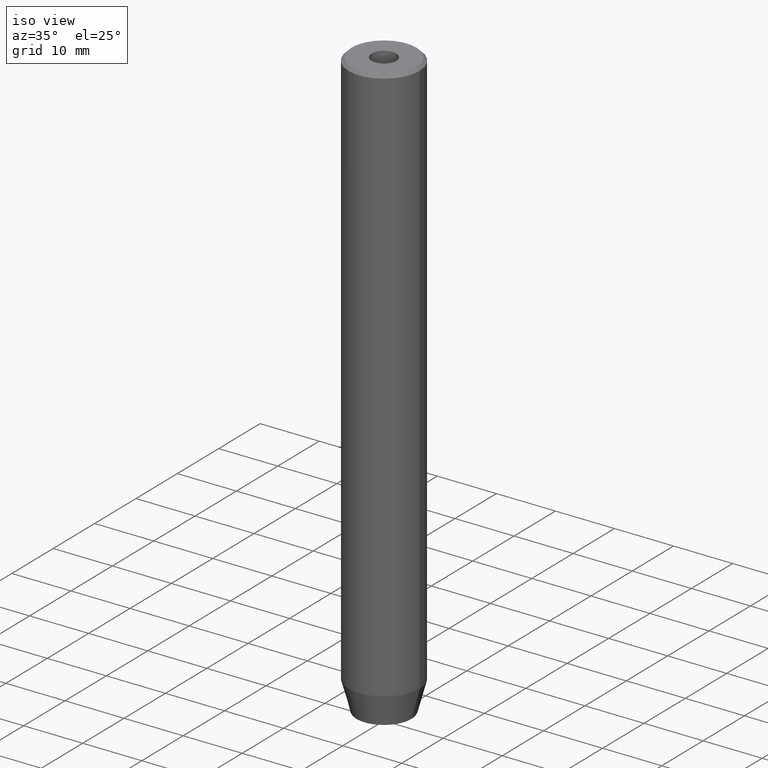
[diagram: clean part render]
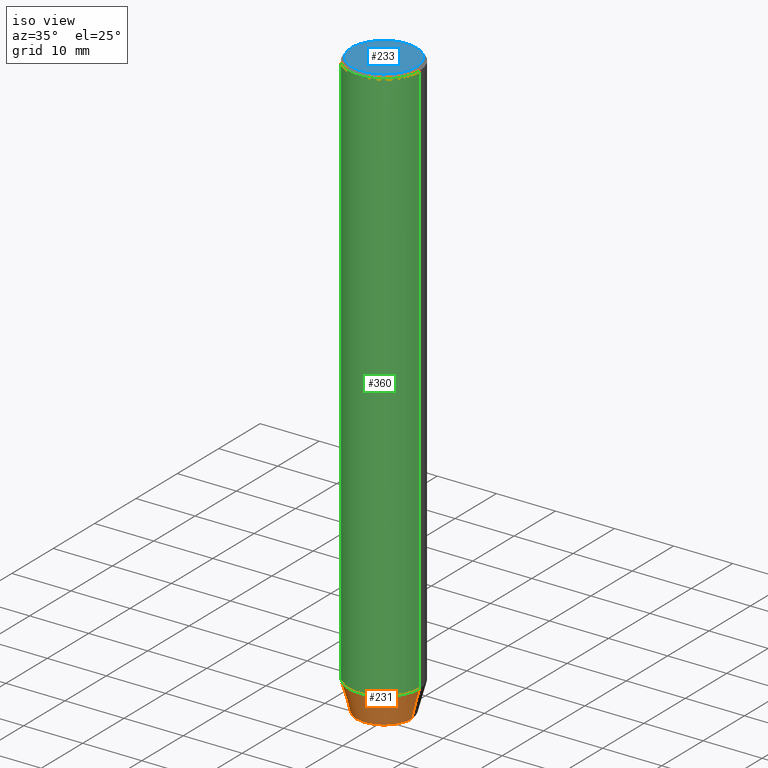
[diagram: same view with three faces highlighted in distinct colors, each labeled with its STEP entity id]
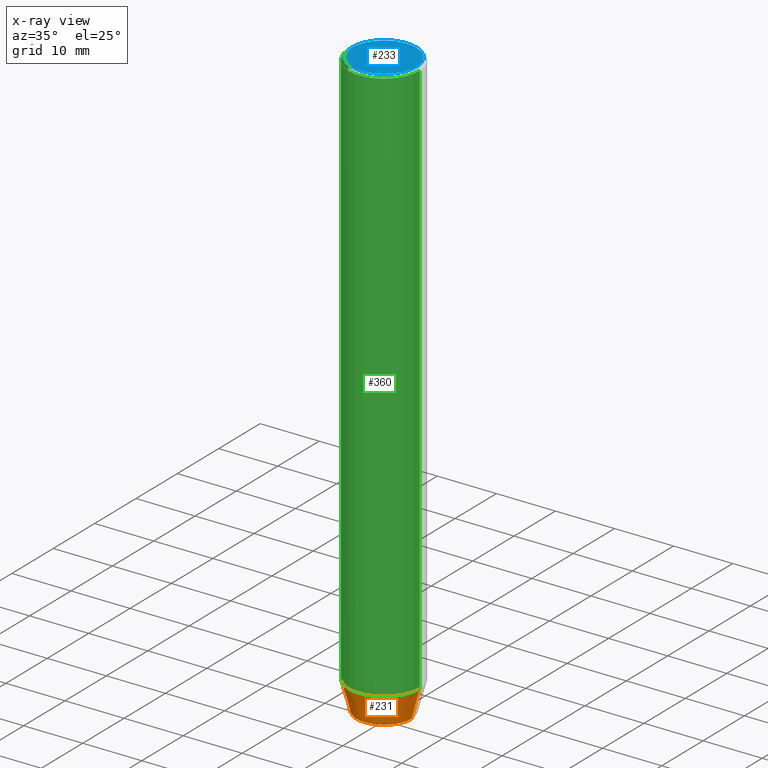
[diagram: x-ray of the same camera — body ghosted, the three highlighted faces saturated]
A machine part, iso view with three faces highlighted in distinct colors.
The next image is the same camera in x-ray (body ghosted, the three faces saturated) — at least one of them is partly hidden behind the body in this view.
Their STEP definitions:

[orange] entity #231 — the highlighted conical surface has half-angle 15 deg.
#43 = FACE_OUTER_BOUND ( 'NONE', #172, .T. ) ;
#47 = AXIS2_PLACEMENT_3D ( 'NONE', #346, #260, #438 ) ;
#49 = LINE ( 'NONE', #560, #364 ) ;
#50 = EDGE_CURVE ( 'NONE', #415, #471, #49, .T. ) ;
#91 = DIRECTION ( 'NONE',  ( -0.2588190451025214611, 3.169619151431774186E-17, 0.9659258262890679791 ) ) ;
#99 = AXIS2_PLACEMENT_3D ( 'NONE', #307, #210, #486 ) ;
#113 = LINE ( 'NONE', #437, #391 ) ;
#128 = EDGE_CURVE ( 'NONE', #383, #555, #113, .T. ) ;
#145 = EDGE_CURVE ( 'NONE', #471, #555, #413, .T. ) ;
#147 = CARTESIAN_POINT ( 'NONE',  ( -4.660254037844381081, 6.527522992771884330E-16, -100.0000000000000000 ) ) ;
#164 = CARTESIAN_POINT ( 'NONE',  ( 6.000000000000000000, 0.000000000000000000, -95.00000000000000000 ) ) ;
#172 = EDGE_LOOP ( 'NONE', ( #558, #533, #273, #319 ) ) ;
#210 = DIRECTION ( 'NONE',  ( -0.000000000000000000, -0.000000000000000000, 1.000000000000000000 ) ) ;
#231 = ADVANCED_FACE ( 'NONE', ( #43 ), #300, .T. ) ;
#240 = EDGE_CURVE ( 'NONE', #415, #383, #271, .T. ) ;
#249 = DIRECTION ( 'NONE',  ( 0.2588190451025214611, 0.000000000000000000, 0.9659258262890679791 ) ) ;
#260 = DIRECTION ( 'NONE',  ( -0.000000000000000000, -0.000000000000000000, 1.000000000000000000 ) ) ;
#271 = CIRCLE ( 'NONE', #347, 4.660254037844381081 ) ;
#273 = ORIENTED_EDGE ( 'NONE', *, *, #128, .T. ) ;
#281 = CARTESIAN_POINT ( 'NONE',  ( -6.000000000000000000, 7.347880794884119736E-16, -95.00000000000000000 ) ) ;
#300 = CONICAL_SURFACE ( 'NONE', #47, 6.000000000000000000, 0.2617993877991502405 ) ;
#307 = CARTESIAN_POINT ( 'NONE',  ( 0.000000000000000000, 0.000000000000000000, -95.00000000000000000 ) ) ;
#317 = DIRECTION ( 'NONE',  ( -0.000000000000000000, -0.000000000000000000, 1.000000000000000000 ) ) ;
#319 = ORIENTED_EDGE ( 'NONE', *, *, #145, .F. ) ;
#346 = CARTESIAN_POINT ( 'NONE',  ( 0.000000000000000000, 0.000000000000000000, -95.00000000000000000 ) ) ;
#347 = AXIS2_PLACEMENT_3D ( 'NONE', #491, #317, #500 ) ;
#364 = VECTOR ( 'NONE', #91, 1000.000000000000114 ) ;
#383 = VERTEX_POINT ( 'NONE', #510 ) ;
#391 = VECTOR ( 'NONE', #249, 1000.000000000000114 ) ;
#413 = CIRCLE ( 'NONE', #99, 6.000000000000000000 ) ;
#415 = VERTEX_POINT ( 'NONE', #147 ) ;
#437 = CARTESIAN_POINT ( 'NONE',  ( 6.000000000000000000, 0.000000000000000000, -95.00000000000000000 ) ) ;
#438 = DIRECTION ( 'NONE',  ( 1.000000000000000000, 0.000000000000000000, 0.000000000000000000 ) ) ;
#471 = VERTEX_POINT ( 'NONE', #281 ) ;
#486 = DIRECTION ( 'NONE',  ( 1.000000000000000000, 0.000000000000000000, 0.000000000000000000 ) ) ;
#491 = CARTESIAN_POINT ( 'NONE',  ( 0.000000000000000000, 0.000000000000000000, -100.0000000000000000 ) ) ;
#500 = DIRECTION ( 'NONE',  ( 1.000000000000000000, 0.000000000000000000, 0.000000000000000000 ) ) ;
#510 = CARTESIAN_POINT ( 'NONE',  ( 4.660254037844381081, 0.000000000000000000, -100.0000000000000000 ) ) ;
#533 = ORIENTED_EDGE ( 'NONE', *, *, #240, .T. ) ;
#555 = VERTEX_POINT ( 'NONE', #164 ) ;
#558 = ORIENTED_EDGE ( 'NONE', *, *, #50, .F. ) ;
#560 = CARTESIAN_POINT ( 'NONE',  ( -6.000000000000000000, 7.347880794884119736E-16, -95.00000000000000000 ) ) ;

[blue] entity #233 — the highlighted planar face has unit normal (0, -0, 1).
#1 = EDGE_CURVE ( 'NONE', #283, #66, #377, .T. ) ;
#3 = CARTESIAN_POINT ( 'NONE',  ( -2.099999999999998757, 2.571758278209439985E-16, -1.990051048614449116E-16 ) ) ;
#8 = CARTESIAN_POINT ( 'NONE',  ( 0.000000000000000000, 0.000000000000000000, 0.000000000000000000 ) ) ;
#19 = CARTESIAN_POINT ( 'NONE',  ( 5.500000000000004441, 7.041719095097283838E-16, 0.000000000000000000 ) ) ;
#20 = EDGE_LOOP ( 'NONE', ( #285, #276 ) ) ;
#52 = FACE_BOUND ( 'NONE', #20, .T. ) ;
#64 = AXIS2_PLACEMENT_3D ( 'NONE', #8, #237, #506 ) ;
#66 = VERTEX_POINT ( 'NONE', #403 ) ;
#77 = CARTESIAN_POINT ( 'NONE',  ( 0.000000000000000000, 0.000000000000000000, -1.990051048614449116E-16 ) ) ;
#79 = DIRECTION ( 'NONE',  ( 1.000000000000000000, 0.000000000000000000, 0.000000000000000000 ) ) ;
#80 = DIRECTION ( 'NONE',  ( 1.000000000000000000, 0.000000000000000000, 0.000000000000000000 ) ) ;
#104 = ORIENTED_EDGE ( 'NONE', *, *, #465, .T. ) ;
#118 = AXIS2_PLACEMENT_3D ( 'NONE', #213, #222, #80 ) ;
#120 = CARTESIAN_POINT ( 'NONE',  ( 0.000000000000000000, 0.000000000000000000, 0.000000000000000000 ) ) ;
#171 = DIRECTION ( 'NONE',  ( 1.000000000000000000, 0.000000000000000000, 0.000000000000000000 ) ) ;
#182 = ORIENTED_EDGE ( 'NONE', *, *, #247, .T. ) ;
#190 = EDGE_LOOP ( 'NONE', ( #104, #182 ) ) ;
#213 = CARTESIAN_POINT ( 'NONE',  ( 0.000000000000000000, 0.000000000000000000, -1.990051048614449116E-16 ) ) ;
#222 = DIRECTION ( 'NONE',  ( -0.000000000000000000, -0.000000000000000000, 1.000000000000000000 ) ) ;
#228 = AXIS2_PLACEMENT_3D ( 'NONE', #361, #526, #79 ) ;
#233 = ADVANCED_FACE ( 'NONE', ( #52, #409 ), #386, .T. ) ;
#237 = DIRECTION ( 'NONE',  ( -0.000000000000000000, -0.000000000000000000, 1.000000000000000000 ) ) ;
#247 = EDGE_CURVE ( 'NONE', #373, #529, #318, .T. ) ;
#272 = AXIS2_PLACEMENT_3D ( 'NONE', #77, #435, #514 ) ;
#276 = ORIENTED_EDGE ( 'NONE', *, *, #1, .F. ) ;
#283 = VERTEX_POINT ( 'NONE', #3 ) ;
#285 = ORIENTED_EDGE ( 'NONE', *, *, #554, .F. ) ;
#291 = CARTESIAN_POINT ( 'NONE',  ( -5.500000000000004441, 0.000000000000000000, 0.000000000000000000 ) ) ;
#304 = DIRECTION ( 'NONE',  ( -0.000000000000000000, -0.000000000000000000, 1.000000000000000000 ) ) ;
#318 = CIRCLE ( 'NONE', #421, 5.500000000000004441 ) ;
#326 = CIRCLE ( 'NONE', #64, 5.500000000000004441 ) ;
#361 = CARTESIAN_POINT ( 'NONE',  ( 0.000000000000000000, 0.000000000000000000, 0.000000000000000000 ) ) ;
#373 = VERTEX_POINT ( 'NONE', #19 ) ;
#377 = CIRCLE ( 'NONE', #118, 2.099999999999998757 ) ;
#386 = PLANE ( 'NONE',  #228 ) ;
#403 = CARTESIAN_POINT ( 'NONE',  ( 2.099999999999998757, 0.000000000000000000, -1.990051048614449116E-16 ) ) ;
#409 = FACE_OUTER_BOUND ( 'NONE', #190, .T. ) ;
#414 = CIRCLE ( 'NONE', #272, 2.099999999999998757 ) ;
#421 = AXIS2_PLACEMENT_3D ( 'NONE', #120, #304, #171 ) ;
#435 = DIRECTION ( 'NONE',  ( -0.000000000000000000, -0.000000000000000000, 1.000000000000000000 ) ) ;
#465 = EDGE_CURVE ( 'NONE', #529, #373, #326, .T. ) ;
#506 = DIRECTION ( 'NONE',  ( 1.000000000000000000, 0.000000000000000000, 0.000000000000000000 ) ) ;
#514 = DIRECTION ( 'NONE',  ( 1.000000000000000000, 0.000000000000000000, 0.000000000000000000 ) ) ;
#526 = DIRECTION ( 'NONE',  ( 0.000000000000000000, -0.000000000000000000, 1.000000000000000000 ) ) ;
#529 = VERTEX_POINT ( 'NONE', #291 ) ;
#554 = EDGE_CURVE ( 'NONE', #66, #283, #414, .T. ) ;

[green] entity #360 — the highlighted cylindrical surface (partial cylindrical patch) has radius 6 mm, axis along (-0, -0, 1).
#13 = CIRCLE ( 'NONE', #525, 6.000000000000000000 ) ;
#14 = FACE_OUTER_BOUND ( 'NONE', #511, .T. ) ;
#34 = CARTESIAN_POINT ( 'NONE',  ( 0.000000000000000000, 0.000000000000000000, -0.5000000000000029976 ) ) ;
#40 = VECTOR ( 'NONE', #56, 1000.000000000000000 ) ;
#56 = DIRECTION ( 'NONE',  ( -0.000000000000000000, -0.000000000000000000, 1.000000000000000000 ) ) ;
#99 = AXIS2_PLACEMENT_3D ( 'NONE', #307, #210, #486 ) ;
#106 = CYLINDRICAL_SURFACE ( 'NONE', #527, 6.000000000000000000 ) ;
#138 = ORIENTED_EDGE ( 'NONE', *, *, #153, .T. ) ;
#145 = EDGE_CURVE ( 'NONE', #471, #555, #413, .T. ) ;
#150 = LINE ( 'NONE', #374, #406 ) ;
#153 = EDGE_CURVE ( 'NONE', #488, #330, #13, .T. ) ;
#163 = ORIENTED_EDGE ( 'NONE', *, *, #145, .T. ) ;
#164 = CARTESIAN_POINT ( 'NONE',  ( 6.000000000000000000, 0.000000000000000000, -95.00000000000000000 ) ) ;
#191 = DIRECTION ( 'NONE',  ( -0.000000000000000000, -0.000000000000000000, 1.000000000000000000 ) ) ;
#210 = DIRECTION ( 'NONE',  ( -0.000000000000000000, -0.000000000000000000, 1.000000000000000000 ) ) ;
#238 = ORIENTED_EDGE ( 'NONE', *, *, #515, .F. ) ;
#239 = CARTESIAN_POINT ( 'NONE',  ( -6.000000000000000000, 7.347880794884119736E-16, -0.5000000000000029976 ) ) ;
#258 = DIRECTION ( 'NONE',  ( -0.000000000000000000, -0.000000000000000000, 1.000000000000000000 ) ) ;
#279 = CARTESIAN_POINT ( 'NONE',  ( 0.000000000000000000, 0.000000000000000000, 0.000000000000000000 ) ) ;
#281 = CARTESIAN_POINT ( 'NONE',  ( -6.000000000000000000, 7.347880794884119736E-16, -95.00000000000000000 ) ) ;
#284 = CARTESIAN_POINT ( 'NONE',  ( 6.000000000000000000, 0.000000000000000000, 0.000000000000000000 ) ) ;
#286 = DIRECTION ( 'NONE',  ( 1.000000000000000000, 0.000000000000000000, 0.000000000000000000 ) ) ;
#288 = ORIENTED_EDGE ( 'NONE', *, *, #405, .T. ) ;
#307 = CARTESIAN_POINT ( 'NONE',  ( 0.000000000000000000, 0.000000000000000000, -95.00000000000000000 ) ) ;
#330 = VERTEX_POINT ( 'NONE', #239 ) ;
#360 = ADVANCED_FACE ( 'NONE', ( #14 ), #106, .T. ) ;
#374 = CARTESIAN_POINT ( 'NONE',  ( -6.000000000000000000, 7.347880794884119736E-16, 0.000000000000000000 ) ) ;
#405 = EDGE_CURVE ( 'NONE', #555, #488, #501, .T. ) ;
#406 = VECTOR ( 'NONE', #258, 1000.000000000000000 ) ;
#413 = CIRCLE ( 'NONE', #99, 6.000000000000000000 ) ;
#417 = CARTESIAN_POINT ( 'NONE',  ( 6.000000000000000000, 0.000000000000000000, -0.5000000000000029976 ) ) ;
#471 = VERTEX_POINT ( 'NONE', #281 ) ;
#486 = DIRECTION ( 'NONE',  ( 1.000000000000000000, 0.000000000000000000, 0.000000000000000000 ) ) ;
#488 = VERTEX_POINT ( 'NONE', #417 ) ;
#501 = LINE ( 'NONE', #284, #40 ) ;
#511 = EDGE_LOOP ( 'NONE', ( #238, #163, #288, #138 ) ) ;
#515 = EDGE_CURVE ( 'NONE', #471, #330, #150, .T. ) ;
#525 = AXIS2_PLACEMENT_3D ( 'NONE', #34, #540, #531 ) ;
#527 = AXIS2_PLACEMENT_3D ( 'NONE', #279, #191, #286 ) ;
#531 = DIRECTION ( 'NONE',  ( 1.000000000000000000, 0.000000000000000000, 0.000000000000000000 ) ) ;
#540 = DIRECTION ( 'NONE',  ( 0.000000000000000000, 0.000000000000000000, -1.000000000000000000 ) ) ;
#555 = VERTEX_POINT ( 'NONE', #164 ) ;